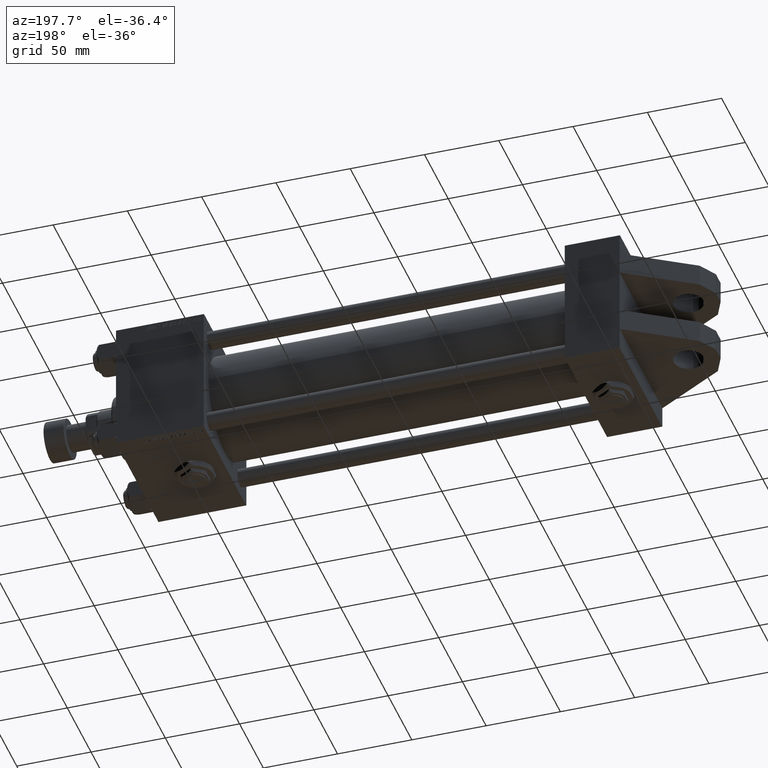
[diagram: clean part render]
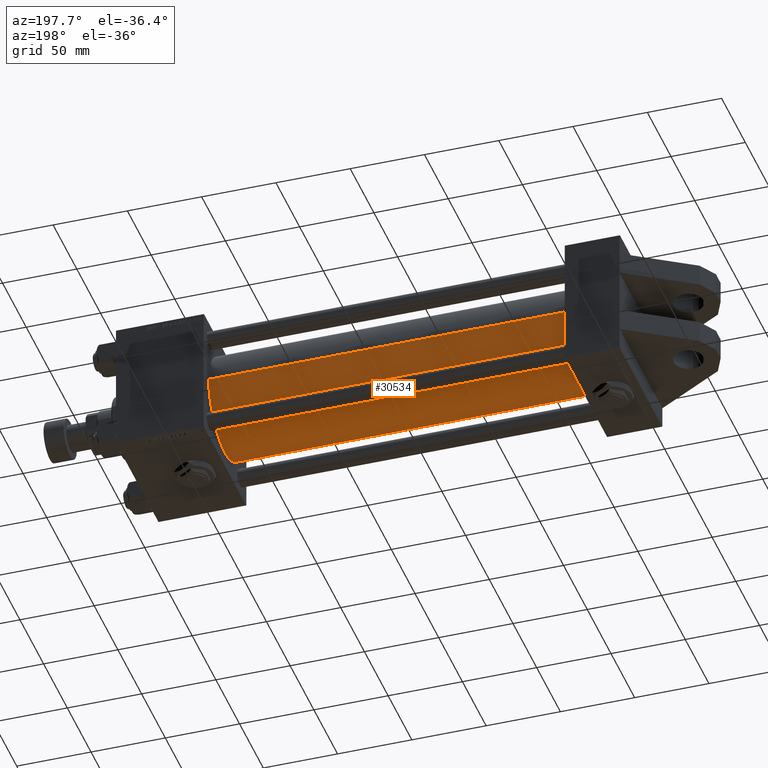
[diagram: same view with one face highlighted and labeled with its STEP entity id]
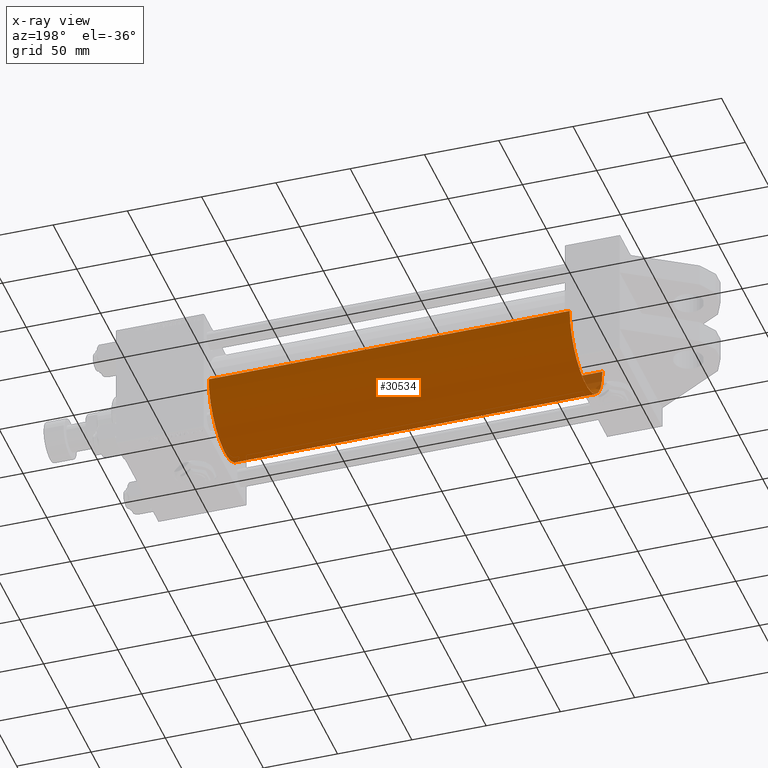
[diagram: x-ray of the same camera — body ghosted, the highlighted face saturated]
A machine part, auxiliary view. The second image highlights one B-rep face of the part: STEP entity #30534.
The next image is the same camera in x-ray: the body ghosted, the highlighted face saturated — about 1% of this face is hidden behind the body in this view.
In plain terms, the highlighted cylindrical surface (partial cylindrical patch) has radius 34.5 mm, axis along (-1, -0, 0).
Its self-contained STEP definition (entity closure, byte-faithful):
#1626 = DIRECTION ( 'NONE',  ( 0.000000000000000000, 0.000000000000000000, 1.000000000000000000 ) ) ;
#2061 = VECTOR ( 'NONE', #23170, 1000.000000000000000 ) ;
#4802 = VERTEX_POINT ( 'NONE', #11994 ) ;
#5938 = ORIENTED_EDGE ( 'NONE', *, *, #50625, .T. ) ;
#8036 = VECTOR ( 'NONE', #35463, 1000.000000000000000 ) ;
#10765 = DIRECTION ( 'NONE',  ( -1.000000000000000000, -0.000000000000000000, -0.000000000000000000 ) ) ;
#10894 = AXIS2_PLACEMENT_3D ( 'NONE', #34276, #10765, #47222 ) ;
#11292 = FACE_OUTER_BOUND ( 'NONE', #42065, .T. ) ;
#11994 = CARTESIAN_POINT ( 'NONE',  ( 37.00000000000000711, 7.555845051047534515E-16, -34.49999999999999289 ) ) ;
#12700 = CARTESIAN_POINT ( 'NONE',  ( 279.9999999999999432, -3.469446951953614189E-15, 34.49999999999999289 ) ) ;
#16005 = CIRCLE ( 'NONE', #49751, 34.49999999999999289 ) ;
#16565 = CARTESIAN_POINT ( 'NONE',  ( 279.9999999999999432, -3.469446951953614189E-15, 34.49999999999999289 ) ) ;
#16744 = CARTESIAN_POINT ( 'NONE',  ( 37.00000000000000711, -3.469446951953614189E-15, 34.49999999999999289 ) ) ;
#17995 = CARTESIAN_POINT ( 'NONE',  ( 37.00000000000000711, -3.469446951953614189E-15, 0.000000000000000000 ) ) ;
#19358 = CARTESIAN_POINT ( 'NONE',  ( 279.9999999999999432, 7.555845051047534515E-16, -34.49999999999999289 ) ) ;
#20026 = ORIENTED_EDGE ( 'NONE', *, *, #38194, .T. ) ;
#21143 = CIRCLE ( 'NONE', #50689, 34.49999999999999289 ) ;
#22953 = CARTESIAN_POINT ( 'NONE',  ( 279.9999999999999432, 7.555845051047534515E-16, -34.49999999999999289 ) ) ;
#23170 = DIRECTION ( 'NONE',  ( -1.000000000000000000, -0.000000000000000000, -0.000000000000000000 ) ) ;
#27543 = LINE ( 'NONE', #19358, #8036 ) ;
#28309 = VERTEX_POINT ( 'NONE', #16565 ) ;
#30534 = ADVANCED_FACE ( 'NONE', ( #11292 ), #46962, .T. ) ;
#31701 = EDGE_CURVE ( 'NONE', #33815, #28309, #16005, .T. ) ;
#32273 = ORIENTED_EDGE ( 'NONE', *, *, #48370, .F. ) ;
#33815 = VERTEX_POINT ( 'NONE', #22953 ) ;
#34276 = CARTESIAN_POINT ( 'NONE',  ( 279.9999999999999432, -3.469446951953614189E-15, 0.000000000000000000 ) ) ;
#34370 = DIRECTION ( 'NONE',  ( 1.000000000000000000, -0.000000000000000000, 0.000000000000000000 ) ) ;
#34477 = CARTESIAN_POINT ( 'NONE',  ( 279.9999999999999432, -3.469446951953614189E-15, 0.000000000000000000 ) ) ;
#34688 = VERTEX_POINT ( 'NONE', #16744 ) ;
#35463 = DIRECTION ( 'NONE',  ( -1.000000000000000000, -0.000000000000000000, -0.000000000000000000 ) ) ;
#36059 = DIRECTION ( 'NONE',  ( 1.000000000000000000, 0.000000000000000000, 0.000000000000000000 ) ) ;
#38194 = EDGE_CURVE ( 'NONE', #4802, #34688, #21143, .T. ) ;
#40287 = DIRECTION ( 'NONE',  ( 0.000000000000000000, 0.000000000000000000, -1.000000000000000000 ) ) ;
#42065 = EDGE_LOOP ( 'NONE', ( #45548, #5938, #20026, #32273 ) ) ;
#45548 = ORIENTED_EDGE ( 'NONE', *, *, #31701, .F. ) ;
#46962 = CYLINDRICAL_SURFACE ( 'NONE', #10894, 34.49999999999999289 ) ;
#47222 = DIRECTION ( 'NONE',  ( 0.000000000000000000, 0.000000000000000000, 1.000000000000000000 ) ) ;
#48370 = EDGE_CURVE ( 'NONE', #28309, #34688, #48905, .T. ) ;
#48905 = LINE ( 'NONE', #12700, #2061 ) ;
#49751 = AXIS2_PLACEMENT_3D ( 'NONE', #34477, #36059, #40287 ) ;
#50625 = EDGE_CURVE ( 'NONE', #33815, #4802, #27543, .T. ) ;
#50689 = AXIS2_PLACEMENT_3D ( 'NONE', #17995, #34370, #1626 ) ;